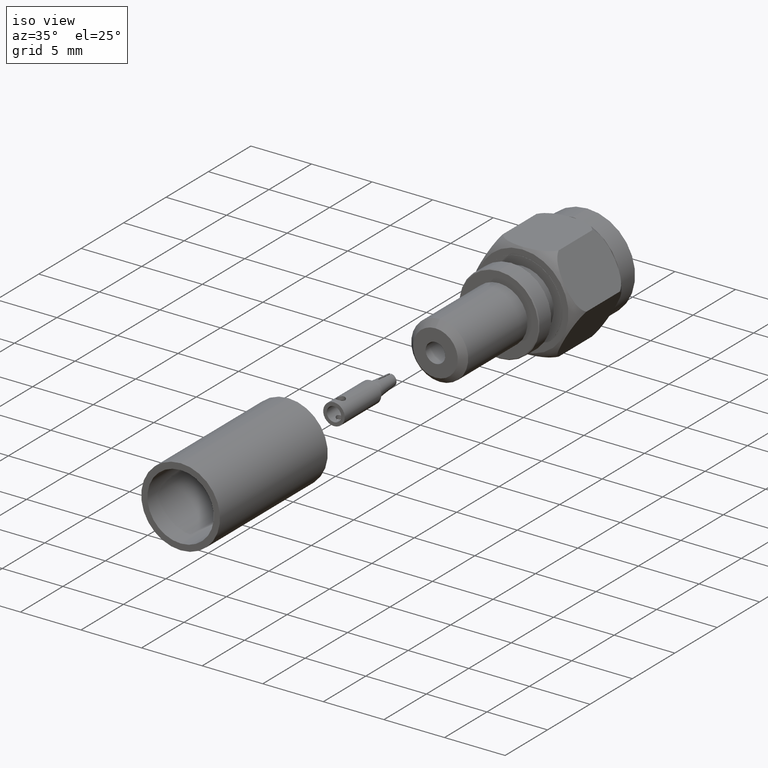
[diagram: clean part render]
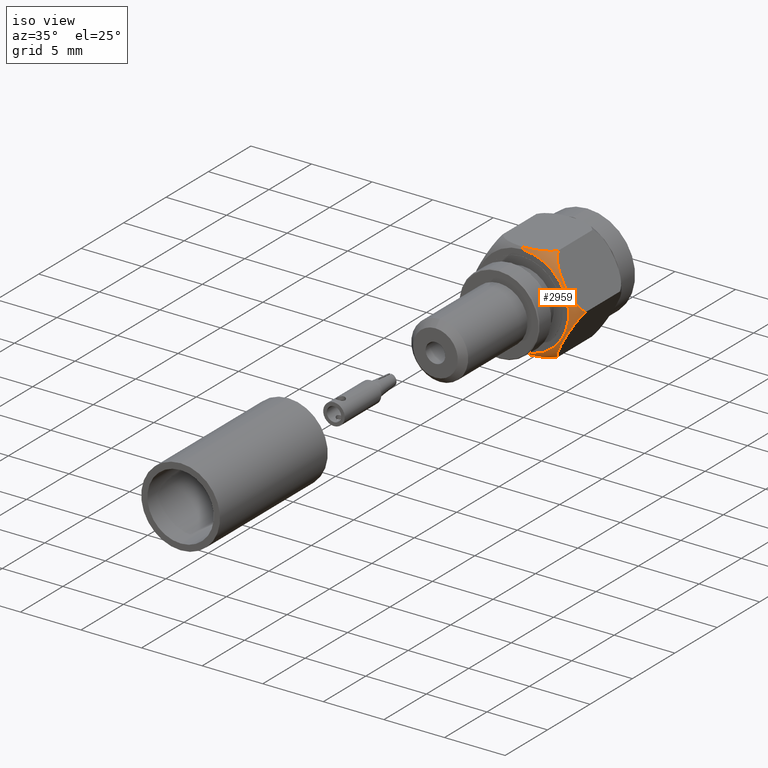
[diagram: same view with one face highlighted and labeled with its STEP entity id]
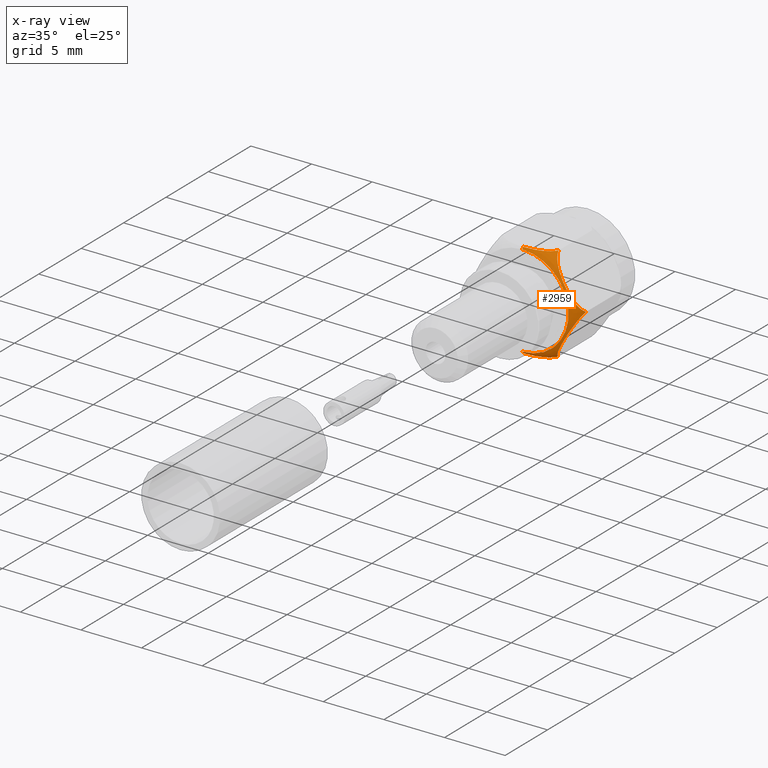
[diagram: x-ray of the same camera — body ghosted, the highlighted face saturated]
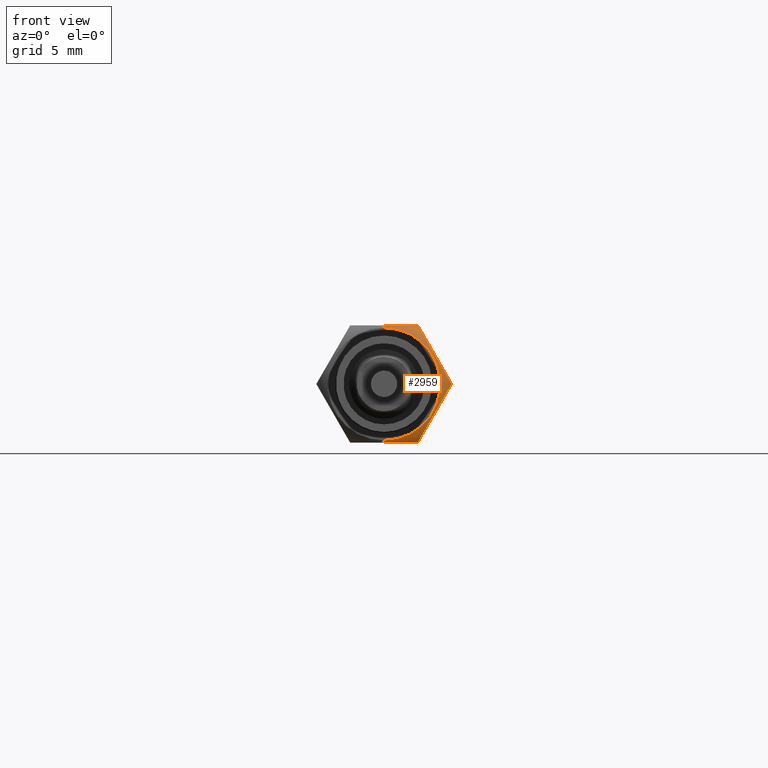
[diagram: same view with one face highlighted and labeled with its STEP entity id]
A machine part, iso view. The second image highlights one B-rep face of the part: STEP entity #2959.
The next image is the same camera in x-ray: the body ghosted, the highlighted face saturated — about 0% of this face is hidden behind the body in this view.
A second angle (front view) of the same face is appended — the face is thin or edge-on in the first view.
In plain terms, the highlighted toroidal blend (fillet) surface has major radius 2.9559 mm and minor (blend) radius 1.6733 mm.
Its self-contained STEP definition (entity closure, byte-faithful):
#1510 = AXIS2_PLACEMENT_3D ( 'NONE', #1660, #1661, #1655 ) ;
#1512 = DIRECTION ( 'NONE',  ( 0.0000000000000000000, 0.0000000000000000000, -1.000000000000000000 ) ) ;
#1513 = DIRECTION ( 'NONE',  ( -0.0000000000000000000, -1.000000000000000000, -0.0000000000000000000 ) ) ;
#1514 = CARTESIAN_POINT ( 'NONE',  ( 0.0000000000000000000, -0.1174999999999999900, 0.0000000000000000000 ) ) ;
#1515 = CARTESIAN_POINT ( 'NONE',  ( 0.0000000000000000000, -0.1135572233053825900, -0.1560000000000000000 ) ) ;
#1516 = CARTESIAN_POINT ( 'NONE',  ( 0.008450997494515676700, -0.1135572233053825900, -0.1560000000000000000 ) ) ;
#1517 = CARTESIAN_POINT ( 'NONE',  ( 0.01689304499247247200, -0.1130547850739234100, -0.1560000000000000300 ) ) ;
#1518 = CARTESIAN_POINT ( 'NONE',  ( 0.03359171387172956600, -0.1108777151575356900, -0.1560000000000000300 ) ) ;
#1519 = CARTESIAN_POINT ( 'NONE',  ( 0.04194874959850784100, -0.1091863545924822400, -0.1560000000000000000 ) ) ;
#1520 = CARTESIAN_POINT ( 'NONE',  ( 0.05805035726873630100, -0.1040850150126289100, -0.1560000000000000300 ) ) ;
#1521 = CARTESIAN_POINT ( 'NONE',  ( 0.06584102524757831600, -0.1006816729264388100, -0.1559999999999999400 ) ) ;
#1522 = CARTESIAN_POINT ( 'NONE',  ( 0.07640472395876506100, -0.09355085670352232500, -0.1560000000000000300 ) ) ;
#1523 = CARTESIAN_POINT ( 'NONE',  ( 0.07967098343096563900, -0.09087574840599503500, -0.1559999999999999400 ) ) ;
#1524 = CARTESIAN_POINT ( 'NONE',  ( 0.08553115326292004500, -0.08473927719803102400, -0.1560000000000000000 ) ) ;
#1525 = CARTESIAN_POINT ( 'NONE',  ( 0.08810343659456756900, -0.08127710271557171700, -0.1560000000000000300 ) ) ;
#1528 = CARTESIAN_POINT ( 'NONE',  ( 0.09006664199358174700, -0.07749999999999999900, -0.1560000000000000000 ) ) ;
#1529 = B_SPLINE_CURVE_WITH_KNOTS ( 'NONE', 3,
 ( #1528, #1525, #1524, #1523, #1522, #1521, #1520, #1519, #1518, #1517, #1516, #1515 ),
 .UNSPECIFIED., .F., .F.,
 ( 4, 2, 2, 2, 2, 4 ),
 ( 0.009407508188636802500, 0.009726627086598589300, 0.01004574598456037600, 0.01068398378048395100, 0.01132222157640752600, 0.01196045937233110000 ),
 .UNSPECIFIED. ) ;
#1530 = CARTESIAN_POINT ( 'NONE',  ( 0.0000000000000000000, -0.1174999999999999900, -0.1501332839871633000 ) ) ;
#1534 = AXIS2_PLACEMENT_3D ( 'NONE', #1514, #1513, #1512 ) ;
#1535 = DIRECTION ( 'NONE',  ( 0.0000000000000000000, 0.0000000000000000000, -1.000000000000000000 ) ) ;
#1537 = CARTESIAN_POINT ( 'NONE',  ( 0.09006664199358142800, -0.07749999999999999900, 0.1560000000000001900 ) ) ;
#1538 = CARTESIAN_POINT ( 'NONE',  ( 0.08810921443242961100, -0.08126598646297125700, 0.1560000000000000000 ) ) ;
#1539 = CARTESIAN_POINT ( 'NONE',  ( 0.08551607731204419200, -0.08475501360076190300, 0.1560000000000000000 ) ) ;
#1540 = CARTESIAN_POINT ( 'NONE',  ( 0.07968664662947878800, -0.09085939706229133300, 0.1560000000000000300 ) ) ;
#1541 = CARTESIAN_POINT ( 'NONE',  ( 0.07643786778567879200, -0.09352381180593245800, 0.1560000000000000000 ) ) ;
#1542 = CARTESIAN_POINT ( 'NONE',  ( 0.06943181440683787700, -0.09826238547170501600, 0.1559999999999999400 ) ) ;
#1543 = CARTESIAN_POINT ( 'NONE',  ( 0.06566920181682738000, -0.1003278652554597100, 0.1560000000000000000 ) ) ;
#1544 = CARTESIAN_POINT ( 'NONE',  ( 0.05797516597332790600, -0.1038690676081856400, 0.1560000000000000000 ) ) ;
#1545 = CARTESIAN_POINT ( 'NONE',  ( 0.05401089938936658900, -0.1053666102901036800, 0.1560000000000000000 ) ) ;
#1546 = CARTESIAN_POINT ( 'NONE',  ( 0.04184211199333759400, -0.1092164952190137100, 0.1560000000000000000 ) ) ;
#1547 = CARTESIAN_POINT ( 'NONE',  ( 0.03356329900518013900, -0.1108820980434391800, 0.1559999999999999400 ) ) ;
#1548 = CARTESIAN_POINT ( 'NONE',  ( 0.01689368606618366400, -0.1130540220334257000, 0.1560000000000000000 ) ) ;
#1549 = CARTESIAN_POINT ( 'NONE',  ( 0.008480627520290842700, -0.1135572233053825900, 0.1560000000000000000 ) ) ;
#1550 = CARTESIAN_POINT ( 'NONE',  ( 1.910449006669871100E-017, -0.1135572233053825900, 0.1560000000000000000 ) ) ;
#1551 = CARTESIAN_POINT ( 'NONE',  ( 0.09006664199358174700, -0.07749999999999999900, -0.1560000000000000000 ) ) ;
#1552 = CIRCLE ( 'NONE', #1534, 0.1501332839871633000 ) ;
#1553 = FACE_OUTER_BOUND ( 'NONE', #3029, .T. ) ;
#1554 = B_SPLINE_CURVE_WITH_KNOTS ( 'NONE', 3,
 ( #1550, #1549, #1548, #1547, #1546, #1545, #1544, #1543, #1542, #1541, #1540, #1539, #1538, #1537 ),
 .UNSPECIFIED., .F., .F.,
 ( 4, 2, 2, 2, 2, 2, 4 ),
 ( 4.766595695789196300E-019, 0.0006404755202106989000, 0.001280951040421397400, 0.001601188800526746800, 0.001921426560632096500, 0.002241664320737445700, 0.002561902080842795600 ),
 .UNSPECIFIED. ) ;
#1555 = TOROIDAL_SURFACE ( 'NONE', #1680, 0.1163730700077413300, 0.06587818383339028000 ) ;
#1558 = DIRECTION ( 'NONE',  ( -0.0000000000000000000, -1.000000000000000000, -0.0000000000000000000 ) ) ;
#1559 = CARTESIAN_POINT ( 'NONE',  ( 0.0000000000000000000, -0.06092983951543351500, 0.0000000000000000000 ) ) ;
#1560 = CARTESIAN_POINT ( 'NONE',  ( 0.1801332839871633000, -0.07750000000062706700, 2.134256245050205600E-017 ) ) ;
#1565 = CARTESIAN_POINT ( 'NONE',  ( 1.910449006669871100E-017, -0.1135572233053825900, 0.1560000000000000000 ) ) ;
#1593 = CARTESIAN_POINT ( 'NONE',  ( 0.1801332839871633000, -0.07750000000062706700, 2.134256245050205600E-017 ) ) ;
#1594 = CARTESIAN_POINT ( 'NONE',  ( 0.1791392651765379400, -0.08132487858964868000, 0.001721691083682322800 ) ) ;
#1595 = CARTESIAN_POINT ( 'NONE',  ( 0.1778359017003245700, -0.08481043977917347700, 0.003979182845213552300 ) ) ;
#1596 = CARTESIAN_POINT ( 'NONE',  ( 0.1749115986981345500, -0.09091645002489577600, 0.009044224221732807500 ) ) ;
#1597 = CARTESIAN_POINT ( 'NONE',  ( 0.1732809310560312100, -0.09358338893158117700, 0.01186862342811428000 ) ) ;
#1598 = CARTESIAN_POINT ( 'NONE',  ( 0.1697619167270908700, -0.09832693057185369600, 0.01796373503840187700 ) ) ;
#1599 = CARTESIAN_POINT ( 'NONE',  ( 0.1678736642884808000, -0.1003915450550193400, 0.02123428419959039200 ) ) ;
#1600 = CARTESIAN_POINT ( 'NONE',  ( 0.1640130113960683600, -0.1039297833839072400, 0.02792113115963628200 ) ) ;
#1601 = CARTESIAN_POINT ( 'NONE',  ( 0.1620237441489556000, -0.1054253391790281500, 0.03136664310146843000 ) ) ;
#1602 = CARTESIAN_POINT ( 'NONE',  ( 0.1559171142850353200, -0.1092676602306793900, 0.04194363628879573700 ) ) ;
#1603 = CARTESIAN_POINT ( 'NONE',  ( 0.1517818906345681800, -0.1109160746151974100, 0.04910605375206520500 ) ) ;
#1604 = CARTESIAN_POINT ( 'NONE',  ( 0.1434805408816338700, -0.1130631376996905800, 0.06348441329554682700 ) ) ;
#1605 = CARTESIAN_POINT ( 'NONE',  ( 0.1393033478782009800, -0.1135569297707813300, 0.07071952381051370400 ) ) ;
#1606 = CARTESIAN_POINT ( 'NONE',  ( 0.1309038151775149800, -0.1135575165871820100, 0.08526794120793797200 ) ) ;
#1607 = CARTESIAN_POINT ( 'NONE',  ( 0.1266516385426978700, -0.1130555250326422400, 0.09263292718219855200 ) ) ;
#1615 = CARTESIAN_POINT ( 'NONE',  ( 0.1182812370931682200, -0.1108705387437205200, 0.1071308877725320700 ) ) ;
#1616 = CARTESIAN_POINT ( 'NONE',  ( 0.1141578027387328400, -0.1092021596323838600, 0.1142728855760891700 ) ) ;
#1617 = CARTESIAN_POINT ( 'NONE',  ( 0.1060997042438655400, -0.1041053802747616100, 0.1282299215815935500 ) ) ;
#1618 = CARTESIAN_POINT ( 'NONE',  ( 0.1021636957830496900, -0.1006608057776143700, 0.1350472882147474900 ) ) ;
#1619 = CARTESIAN_POINT ( 'NONE',  ( 0.09690380602827328200, -0.09355903251019663500, 0.1441576845122313500 ) ) ;
#1620 = CARTESIAN_POINT ( 'NONE',  ( 0.09523188363801382600, -0.09081550468865733100, 0.1470535390384725700 ) ) ;
#1621 = CARTESIAN_POINT ( 'NONE',  ( 0.09232001210262384700, -0.08470103869157159800, 0.1520970484828817200 ) ) ;
#1622 = CARTESIAN_POINT ( 'NONE',  ( 0.09105966938114212800, -0.08132106369924835300, 0.1542800261114377100 ) ) ;
#1623 = CARTESIAN_POINT ( 'NONE',  ( 0.09006664199358142800, -0.07749999999999999900, 0.1560000000000001900 ) ) ;
#1624 = CARTESIAN_POINT ( 'NONE',  ( 0.09006664199358174700, -0.07749999999999999900, -0.1560000000000000000 ) ) ;
#1625 = CARTESIAN_POINT ( 'NONE',  ( 0.09106066080405968200, -0.08132487858920735300, -0.1542783089165724900 ) ) ;
#1626 = CARTESIAN_POINT ( 'NONE',  ( 0.09236402428025405900, -0.08481043977876515100, -0.1520208171550743400 ) ) ;
#1627 = CARTESIAN_POINT ( 'NONE',  ( 0.09528832728241645700, -0.09091645002455285600, -0.1469557757786028000 ) ) ;
#1628 = CARTESIAN_POINT ( 'NONE',  ( 0.09691899492450828400, -0.09358338893126570700, -0.1441313765722411800 ) ) ;
#1629 = CARTESIAN_POINT ( 'NONE',  ( 0.1004380092534279300, -0.09832693057158814500, -0.1380362649619895900 ) ) ;
#1630 = CARTESIAN_POINT ( 'NONE',  ( 0.1023262616920330400, -0.1003915450547808600, -0.1347657158008097300 ) ) ;
#1631 = CARTESIAN_POINT ( 'NONE',  ( 0.1061869145844363500, -0.1039297833837142900, -0.1280788688407794000 ) ) ;
#1632 = CARTESIAN_POINT ( 'NONE',  ( 0.1081761818315454000, -0.1054253391788548100, -0.1246333568989538000 ) ) ;
#1633 = CARTESIAN_POINT ( 'NONE',  ( 0.1142828116954554100, -0.1092676602305594900, -0.1140563637116443200 ) ) ;
#1634 = CARTESIAN_POINT ( 'NONE',  ( 0.1184180353459271700, -0.1109160746151086600, -0.1068939462483668200 ) ) ;
#1635 = CARTESIAN_POINT ( 'NONE',  ( 0.1267193850988608300, -0.1130631376996501400, -0.09251558670488638200 ) ) ;
#1636 = CARTESIAN_POINT ( 'NONE',  ( 0.1308965781022935500, -0.1135569297707610100, -0.08528047618991976800 ) ) ;
#1637 = CARTESIAN_POINT ( 'NONE',  ( 0.1392961108029792100, -0.1135575165872023700, -0.07073205879249606900 ) ) ;
#1638 = CARTESIAN_POINT ( 'NONE',  ( 0.1435482874377963800, -0.1130555250326833900, -0.06336707281823547600 ) ) ;
#1639 = CARTESIAN_POINT ( 'NONE',  ( 0.1519186888873325400, -0.1108705387438084900, -0.04886911222789056000 ) ) ;
#1640 = CARTESIAN_POINT ( 'NONE',  ( 0.1560421232417715800, -0.1092021596324979900, -0.04172711442432720100 ) ) ;
#1641 = CARTESIAN_POINT ( 'NONE',  ( 0.1641002217366479000, -0.1041053802749457000, -0.02777007841880713800 ) ) ;
#1642 = CARTESIAN_POINT ( 'NONE',  ( 0.1680362301974758500, -0.1006608057778368100, -0.02095271178563228700 ) ) ;
#1643 = CARTESIAN_POINT ( 'NONE',  ( 0.1732961199522760900, -0.09355903251049702000, -0.01184231548810726700 ) ) ;
#1644 = CARTESIAN_POINT ( 'NONE',  ( 0.1749680423425471200, -0.09081550468898524900, -0.008946460961845797300 ) ) ;
#1645 = CARTESIAN_POINT ( 'NONE',  ( 0.1778799138779685300, -0.08470103869194932400, -0.003902951517382311000 ) ) ;
#1646 = CARTESIAN_POINT ( 'NONE',  ( 0.1791402565994673300, -0.08132106369965329300, -0.001719973888796692100 ) ) ;
#1647 = CARTESIAN_POINT ( 'NONE',  ( 0.1801332839871633000, -0.07750000000062706700, 2.134256245050205600E-017 ) ) ;
#1650 = B_SPLINE_CURVE_WITH_KNOTS ( 'NONE', 3,
 ( #1623, #1622, #1621, #1620, #1619, #1618, #1617, #1616, #1615, #1607, #1606, #1605, #1604, #1603, #1602, #1601, #1600, #1599, #1598, #1597, #1596, #1595, #1594, #1593 ),
 .UNSPECIFIED., .F., .F.,
 ( 4, 2, 2, 2, 2, 2, 2, 2, 2, 2, 2, 4 ),
 ( 2.204096890313034100E-007, 0.0003211244726668567700, 0.0006420285356446822500, 0.001283836661600332900, 0.001925644787555983500, 0.002567452913511634000, 0.003209261039467284600, 0.003851069165422934800, 0.004171973228400760800, 0.004492877291378587200, 0.004813781354356412800, 0.005134685417334239200 ),
 .UNSPECIFIED. ) ;
#1652 = B_SPLINE_CURVE_WITH_KNOTS ( 'NONE', 3,
 ( #1647, #1646, #1645, #1644, #1643, #1642, #1641, #1640, #1639, #1638, #1637, #1636, #1635, #1634, #1633, #1632, #1631, #1630, #1629, #1628, #1627, #1626, #1625, #1624 ),
 .UNSPECIFIED., .F., .F.,
 ( 4, 2, 2, 2, 2, 2, 2, 2, 2, 2, 2, 4 ),
 ( 2.204097013235236000E-007, 0.0003211244726792078900, 0.0006420285356570922500, 0.001283836661612860000, 0.001925644787568627100, 0.002567452913524395000, 0.003209261039480162300, 0.003851069165435929600, 0.004171973228413813700, 0.004492877291391696500, 0.004813781354369580200, 0.005134685417347463000 ),
 .UNSPECIFIED. ) ;
#1655 = DIRECTION ( 'NONE',  ( 0.0000000000000000000, 0.0000000000000000000, 1.000000000000000000 ) ) ;
#1657 = CARTESIAN_POINT ( 'NONE',  ( 0.0000000000000000000, -0.1135572233053825900, -0.1560000000000000000 ) ) ;
#1660 = CARTESIAN_POINT ( 'NONE',  ( 0.0000000000000000000, -0.06092983951543351500, -0.1163730700077413300 ) ) ;
#1661 = DIRECTION ( 'NONE',  ( -1.000000000000000000, 0.0000000000000000000, 0.0000000000000000000 ) ) ;
#1674 = CIRCLE ( 'NONE', #1510, 0.06587818383339028000 ) ;
#1680 = AXIS2_PLACEMENT_3D ( 'NONE', #1559, #1558, #1535 ) ;
#1688 = CARTESIAN_POINT ( 'NONE',  ( 0.09006664199358142800, -0.07749999999999999900, 0.1560000000000001900 ) ) ;
#1689 = CARTESIAN_POINT ( 'NONE',  ( 2.022769141192446500E-017, -0.1174999999999999900, 0.1501332839871633000 ) ) ;
#1768 = DIRECTION ( 'NONE',  ( -1.224646799147353200E-016, 0.0000000000000000000, -1.000000000000000000 ) ) ;
#1773 = CARTESIAN_POINT ( 'NONE',  ( 1.425159076919312800E-017, -0.06092983951543351500, 0.1163730700077413300 ) ) ;
#1780 = CIRCLE ( 'NONE', #1937, 0.06587818383339028000 ) ;
#1786 = DIRECTION ( 'NONE',  ( 1.000000000000000000, 0.0000000000000000000, -1.224646799147353200E-016 ) ) ;
#1937 = AXIS2_PLACEMENT_3D ( 'NONE', #1773, #1786, #1768 ) ;
#2954 = VERTEX_POINT ( 'NONE', #1689 ) ;
#2955 = EDGE_CURVE ( 'NONE', #2957, #2958, #1554, .T. ) ;
#2956 = ORIENTED_EDGE ( 'NONE', *, *, #2981, .F. ) ;
#2957 = VERTEX_POINT ( 'NONE', #1565 ) ;
#2958 = VERTEX_POINT ( 'NONE', #1688 ) ;
#2959 = ADVANCED_FACE ( 'NONE', ( #1553 ), #1555, .T. ) ;
#2960 = VERTEX_POINT ( 'NONE', #1560 ) ;
#2961 = ORIENTED_EDGE ( 'NONE', *, *, #2955, .F. ) ;
#2962 = VERTEX_POINT ( 'NONE', #1551 ) ;
#2963 = ORIENTED_EDGE ( 'NONE', *, *, #2964, .F. ) ;
#2964 = EDGE_CURVE ( 'NONE', #2962, #2982, #1529, .T. ) ;
#2965 = ORIENTED_EDGE ( 'NONE', *, *, #3036, .T. ) ;
#2966 = EDGE_CURVE ( 'NONE', #2967, #2954, #1552, .T. ) ;
#2967 = VERTEX_POINT ( 'NONE', #1530 ) ;
#2980 = ORIENTED_EDGE ( 'NONE', *, *, #2966, .F. ) ;
#2981 = EDGE_CURVE ( 'NONE', #2982, #2967, #1674, .T. ) ;
#2982 = VERTEX_POINT ( 'NONE', #1657 ) ;
#2984 = EDGE_CURVE ( 'NONE', #2960, #2962, #1652, .T. ) ;
#2989 = ORIENTED_EDGE ( 'NONE', *, *, #2984, .F. ) ;
#2990 = EDGE_CURVE ( 'NONE', #2958, #2960, #1650, .T. ) ;
#2991 = ORIENTED_EDGE ( 'NONE', *, *, #2990, .F. ) ;
#3029 = EDGE_LOOP ( 'NONE', ( #2961, #2965, #2980, #2956, #2963, #2989, #2991 ) ) ;
#3036 = EDGE_CURVE ( 'NONE', #2957, #2954, #1780, .T. ) ;